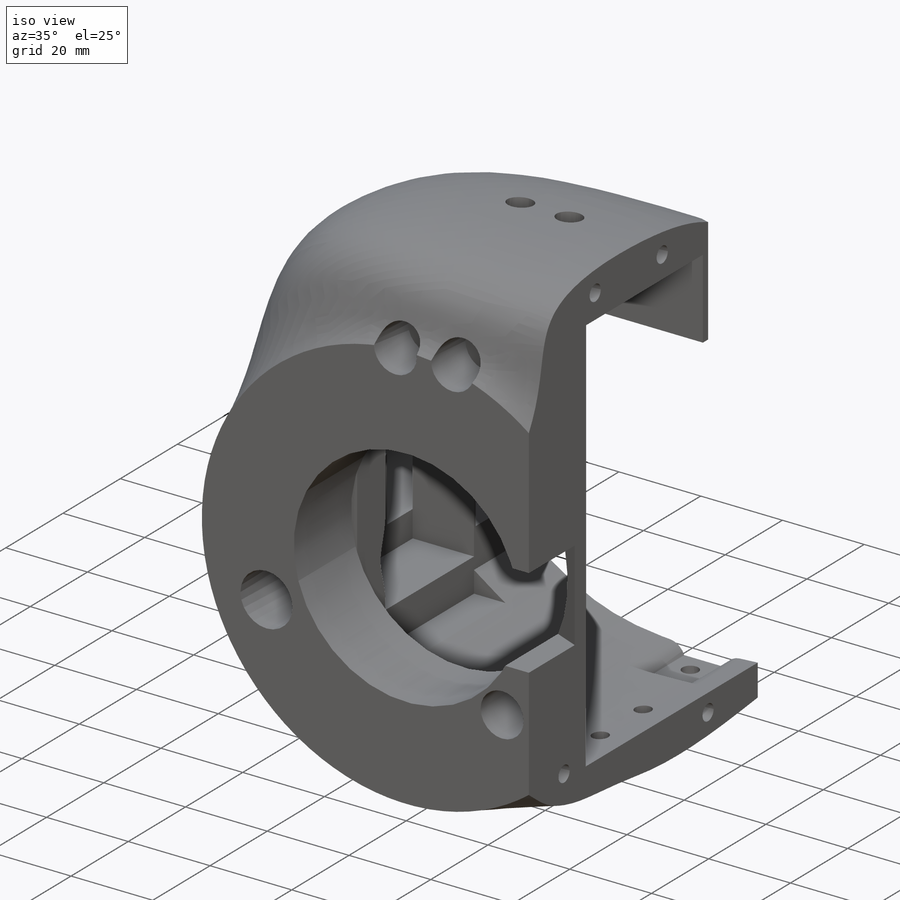
[diagram: iso view]
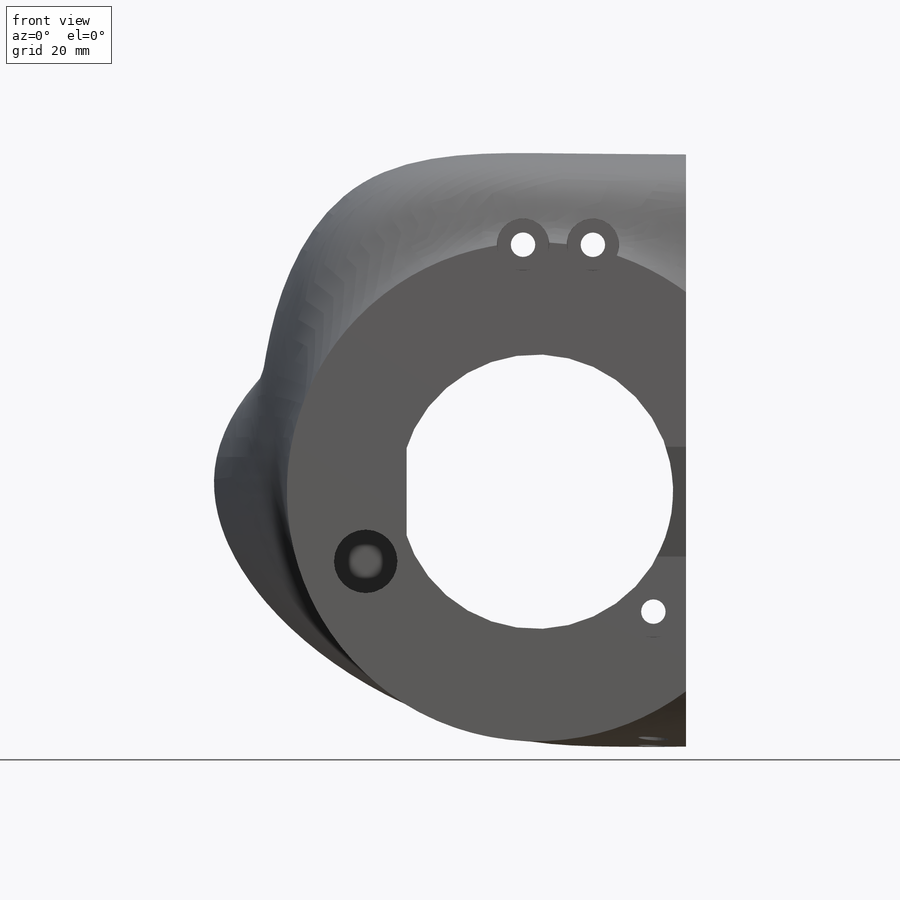
[diagram: front view]
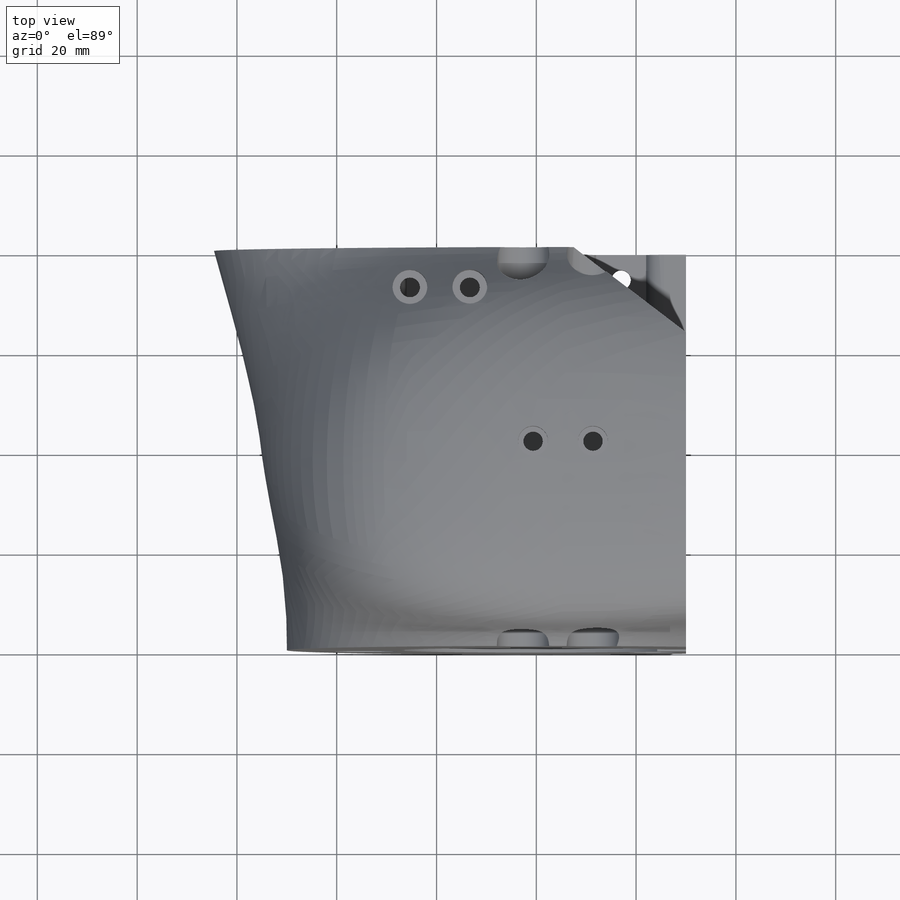
[diagram: top view]
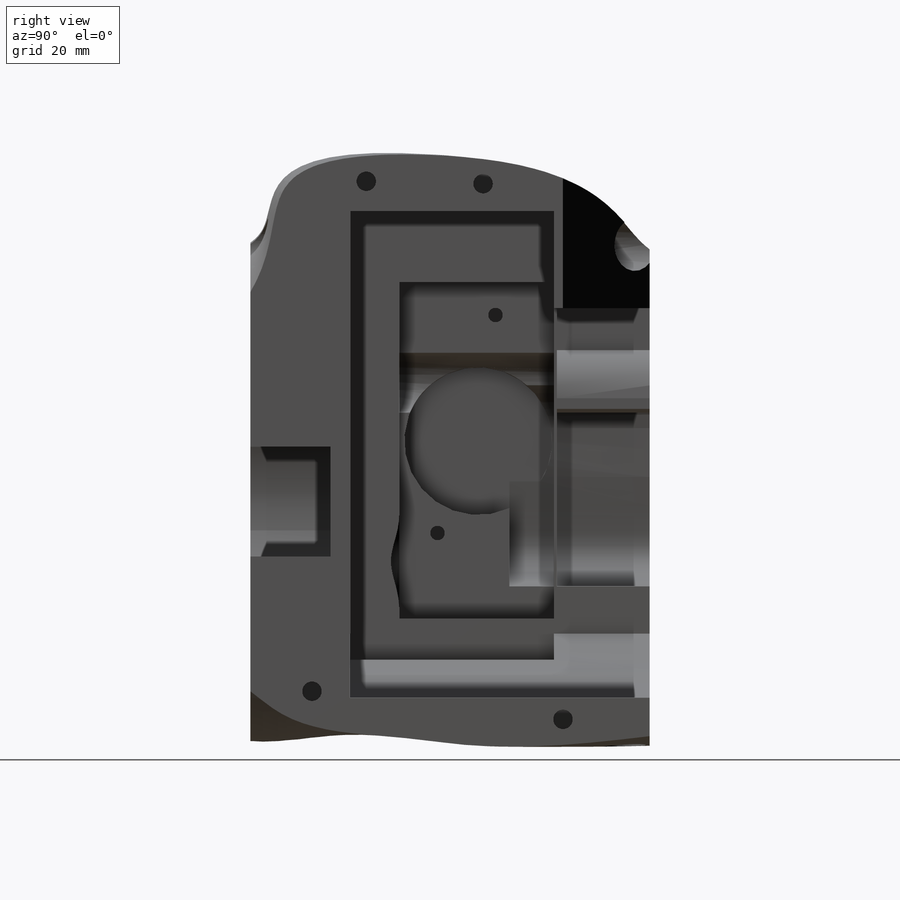
[diagram: right view]
SOLIDWORKS PART (.sldprt)
format: sldprt  version: not decoded by parser v0  size: 4,216,832 bytes
history: native  units: mm
features: sketch x29, cut_extrude x27, fillet x5, plane x2, extrude x2, material x1, move_body x1 (+14 scaffold rows collapsed; 1 parser-record rows omitted)
feature tree (82):
  scaffold x14  (default folders/planes/origin — collapsed)
  material  "ABS"
  sketch  "Sketch1"  dims[D1=20.0mm]
  cut_extrude  "Extrude1"  Depth=56mm
  plane  "Plane1"  Offset=70mm
  move_body  "Body-Move/Copy1"
  parser-record x1  (decoder bookkeeping rows leaked as tree rows — omitted from the tree; the rows remain in map.json)
  sketch  "Sketch3"  dims[D1=3.9mm D2=10.0mm D3=12.0mm D4=40.0mm]
  cut_extrude  "Cut-Extrude1"  Depth=40mm
  sketch  "Sketch4"  dims[D1=6.0mm]
  cut_extrude  "Cut-Extrude2"  Depth=10mm
  plane  "Plane2"  Offset=70mm
  sketch  "Sketch5"  dims[D1=3.9mm D2=12.0mm D3=20.0mm D4=40.0mm]
  cut_extrude  "Extrude3"  Depth=27.972524mm
  sketch  "Sketch6"  dims[D1=6.0mm]
  cut_extrude  "Extrude4"  Depth=6mm
  sketch  "Sketch7"  dims[D1=4.9mm]
  cut_extrude  "Cut-Extrude3"  Depth=94.598678mm
  sketch  "Sketch8"  dims[D1=10.5mm D2=10.5mm]
  cut_extrude  "Cut-Extrude4"  Depth=12mm
  sketch  "Sketch9"  dims[D1=10.5mm]
  cut_extrude  "Cut-Extrude5"  Depth=10mm
  sketch  "Sketch10"  dims[D1=3.9mm]
  cut_extrude  "Cut-Extrude6"  Depth=10mm
  sketch  "Sketch11"  dims[D1=8.0mm D2=14.0mm]
  cut_extrude  "Cut-Extrude7"  Depth=18mm
  sketch  "Sketch14"  dims[D1=3.0mm D2=7.0mm]
  extrude  "Extrude7"  [1 undecoded]
  sketch  "Sketch12"  dims[D1=3.9mm]
  cut_extrude  "Extrude5"  Depth=12mm
  fillet  "Fillet1"  Radius=10mm
  sketch  "Sketch15"  dims[c1.D1=~7.015306mm c1.D2=3.9mm c2.D1=3.9mm]
  cut_extrude  "Cut-Extrude8"  Depth=14mm
  sketch  "Sketch16"  dims[D1=8.0mm D2=10.0mm D3=6.0mm D4=10.0mm]
  cut_extrude  "Cut-Extrude9"  Depth=15mm
  sketch  "Sketch17"  dims[D1=3.9mm]
  cut_extrude  "Extrude8"  Depth=19.339054mm
  sketch  "Sketch18"  dims[D1=8.5mm]
  cut_extrude  "Extrude9"  Depth=4mm
  sketch  "Sketch19"  dims[D1=4.0mm]
  sketch  "Sketch20"
  cut_extrude  "Extrude10"  Depth=20mm
  cut_extrude  "Cut-Extrude10"  Depth=48.960623mm
  sketch  "Sketch21"  dims[D1=7.0mm D2=7.0mm]
  cut_extrude  "Extrude11"  Depth=5mm
  sketch  "Sketch22"  dims[D1=6.5mm D2=38.0mm]
  cut_extrude  "Extrude12"  Depth=40mm
  fillet  "Fillet2"  Radius=8mm
  sketch  "Sketch24"
  cut_extrude  "Extrude14"  Depth=15mm
  sketch  "Sketch26"
  cut_extrude  "Extrude15"  Depth=35mm
  sketch  "Sketch27"  dims[D1=2.9mm]
  fillet  "Fillet3"  Radius=6mm
  cut_extrude  "Extrude16"  Depth=7mm
  sketch  "Sketch28"  dims[D1=12.0mm]
  cut_extrude  "Extrude17"  [1 undecoded]
  sketch  "Sketch30"
  cut_extrude  "Extrude20"  Depth=65.095131mm
  sketch  "Sketch31"
  cut_extrude  "Extrude21"  Depth=60.095131mm
  sketch  "Sketch32"
  cut_extrude  "Extrude22"  Depth=10.095131mm
  fillet  "Fillet4"  Radius=10mm
  fillet  "Fillet5"  Radius=4mm
  sketch  "Sketch33"
  cut_extrude  "Extrude23"  Depth=28.095131mm
  sketch  "Sketch34"
  extrude  "Extrude24"  Depth=0.6mm
decode coverage: 53 of 64 modeling features carry decoded parameters
note: ~ marks probable driven/reference dimensions
note: 2 parameter values undecoded
note: suppression state not decoded; provenance and decode notes live in map.json
